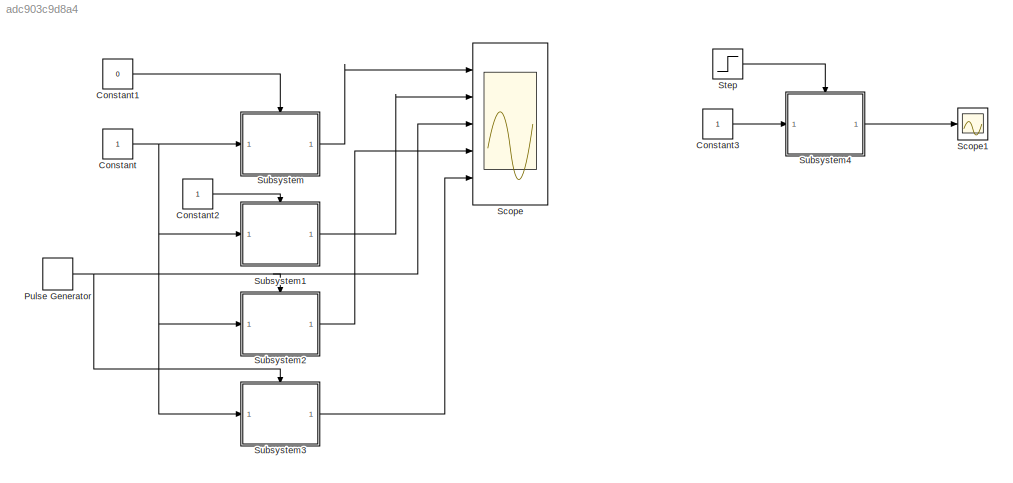
MODEL slx_adc903c9d8a4
KIND model
CONFIG AbsTol = auto
CONFIG EnableMultiTasking = off
CONFIG FixedStep = 1e-3
CONFIG MaxStep = auto
CONFIG MinStep = auto
CONFIG RelTol = 1e-3
CONFIG SampleTimeConstraint = Unconstrained
CONFIG SolverName = FixedStepAuto
CONFIG StartTime = 0.0
CONFIG StopTime = 10.0
BLOCK [Constant] Constant
BLOCK [Constant] Constant1
  Value = 0
BLOCK [Constant] Constant2
BLOCK [Constant] Constant3
BLOCK [DiscretePulseGenerator] Pulse Generator
  Ports = [0, 1]
  PulseType = Time based
  PulseWidth = 50
BLOCK [Scope] Scope
  Floating = off
  NumInputPorts = 5
  Ports = [5]
  ScopeSpecificationString = Simulink.scopes.TimeScopeBlockCfg('CurrentConfiguration', extmgr.ConfigurationSet(extmgr.Configuration('Core','General UI',true),extmgr.Configuration('Core','Source UI',true),extmgr.Configuration('Sources','WiredSimulink',true),extmgr.Configuration('Visuals','Time Domain',true,'SerializedDisplays',{struct('MinYLimReal','-1.00000','MaxYLimReal','1.00000','YLabelReal','','MinYLimMag','0.00000','MaxY...<+6177ch>
BLOCK [Scope] Scope1
  Floating = off
  NumInputPorts = 1
  Ports = [1]
  ScopeSpecificationString = Simulink.scopes.TimeScopeBlockCfg('CurrentConfiguration', extmgr.ConfigurationSet(extmgr.Configuration('Core','General UI',true),extmgr.Configuration('Core','Source UI',true),extmgr.Configuration('Sources','WiredSimulink',true,'DataLoggingVariableName','ScopeData1'),extmgr.Configuration('Visuals','Time Domain',true,'SerializedDisplays',{struct('MinYLimReal','-1125.125','MaxYLimReal','10126.125','Y...<+1456ch>
BLOCK [Step] Step
  SampleTime = 0
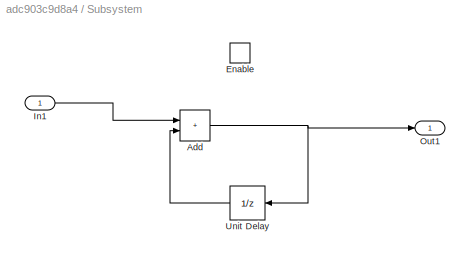
BLOCK [SubSystem] Subsystem
  Ports = [1, 1, 1]
  RequestExecContextInheritance = off
BLOCK [Sum] Subsystem/Add
  IconShape = rectangular
  Ports = [2, 1]
BLOCK [EnablePort] Subsystem/Enable
  Ports = []
BLOCK [Inport] Subsystem/In1
BLOCK [Outport] Subsystem/Out1
BLOCK [UnitDelay] Subsystem/Unit Delay
  HasFrameUpgradeWarning = on
  NameLocation = top
  SampleTime = -1
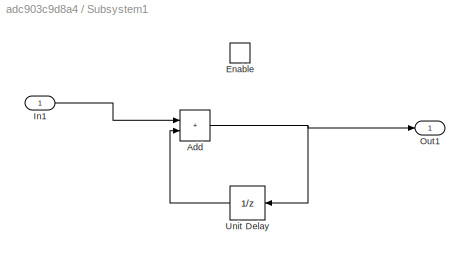
BLOCK [SubSystem] Subsystem1
  Ports = [1, 1, 1]
  RequestExecContextInheritance = off
BLOCK [Sum] Subsystem1/Add
  IconShape = rectangular
  Ports = [2, 1]
BLOCK [EnablePort] Subsystem1/Enable
  Ports = []
BLOCK [Inport] Subsystem1/In1
BLOCK [Outport] Subsystem1/Out1
BLOCK [UnitDelay] Subsystem1/Unit Delay
  HasFrameUpgradeWarning = on
  NameLocation = top
  SampleTime = -1
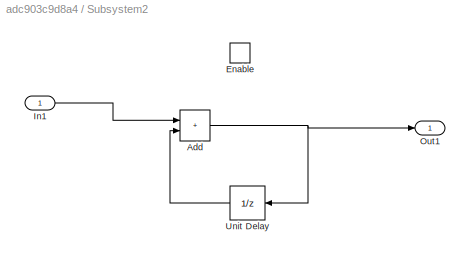
BLOCK [SubSystem] Subsystem2
  Ports = [1, 1, 1]
  RequestExecContextInheritance = off
BLOCK [Sum] Subsystem2/Add
  IconShape = rectangular
  Ports = [2, 1]
BLOCK [EnablePort] Subsystem2/Enable
  Ports = []
BLOCK [Inport] Subsystem2/In1
BLOCK [Outport] Subsystem2/Out1
BLOCK [UnitDelay] Subsystem2/Unit Delay
  HasFrameUpgradeWarning = on
  NameLocation = top
  SampleTime = -1
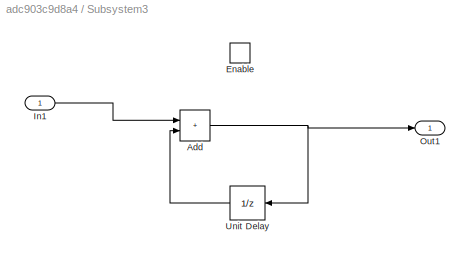
BLOCK [SubSystem] Subsystem3
  Ports = [1, 1, 1]
  RequestExecContextInheritance = off
BLOCK [Sum] Subsystem3/Add
  IconShape = rectangular
  Ports = [2, 1]
BLOCK [EnablePort] Subsystem3/Enable
  Ports = []
  StatesWhenEnabling = reset
BLOCK [Inport] Subsystem3/In1
BLOCK [Outport] Subsystem3/Out1
BLOCK [UnitDelay] Subsystem3/Unit Delay
  HasFrameUpgradeWarning = on
  NameLocation = top
  SampleTime = -1
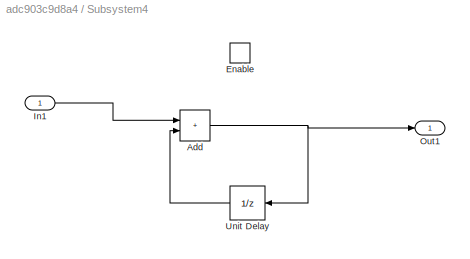
BLOCK [SubSystem] Subsystem4
  Ports = [1, 1, 1]
  RequestExecContextInheritance = off
BLOCK [Sum] Subsystem4/Add
  IconShape = rectangular
  Ports = [2, 1]
BLOCK [EnablePort] Subsystem4/Enable
  Ports = []
BLOCK [Inport] Subsystem4/In1
BLOCK [Outport] Subsystem4/Out1
BLOCK [UnitDelay] Subsystem4/Unit Delay
  HasFrameUpgradeWarning = on
  NameLocation = top
  SampleTime = -1
LINE Constant1:1 -> Subsystem:enable
LINE Constant2:1 -> Subsystem1:enable
LINE Constant3:1 -> Subsystem4:1
NET Constant:1 -> Subsystem1:1, Subsystem2:1, Subsystem3:1, Subsystem:1
NET Pulse Generator:1 -> Scope:3, Subsystem2:enable, Subsystem3:enable
LINE Step:1 -> Subsystem4:enable
NET Subsystem/Add:1 -> Subsystem/Out1:1, Subsystem/Unit Delay:1
LINE Subsystem/In1:1 -> Subsystem/Add:1
LINE Subsystem/Unit Delay:1 -> Subsystem/Add:2
NET Subsystem1/Add:1 -> Subsystem1/Out1:1, Subsystem1/Unit Delay:1
LINE Subsystem1/In1:1 -> Subsystem1/Add:1
LINE Subsystem1/Unit Delay:1 -> Subsystem1/Add:2
LINE Subsystem1:1 -> Scope:2
NET Subsystem2/Add:1 -> Subsystem2/Out1:1, Subsystem2/Unit Delay:1
LINE Subsystem2/In1:1 -> Subsystem2/Add:1
LINE Subsystem2/Unit Delay:1 -> Subsystem2/Add:2
LINE Subsystem2:1 -> Scope:4
NET Subsystem3/Add:1 -> Subsystem3/Out1:1, Subsystem3/Unit Delay:1
LINE Subsystem3/In1:1 -> Subsystem3/Add:1
LINE Subsystem3/Unit Delay:1 -> Subsystem3/Add:2
LINE Subsystem3:1 -> Scope:5
NET Subsystem4/Add:1 -> Subsystem4/Out1:1, Subsystem4/Unit Delay:1
LINE Subsystem4/In1:1 -> Subsystem4/Add:1
LINE Subsystem4/Unit Delay:1 -> Subsystem4/Add:2
LINE Subsystem4:1 -> Scope1:1
LINE Subsystem:1 -> Scope:1
note: NET lines group one-source signal fan-out (src -> all destinations, sorted); 1:1 wires keep LINE
